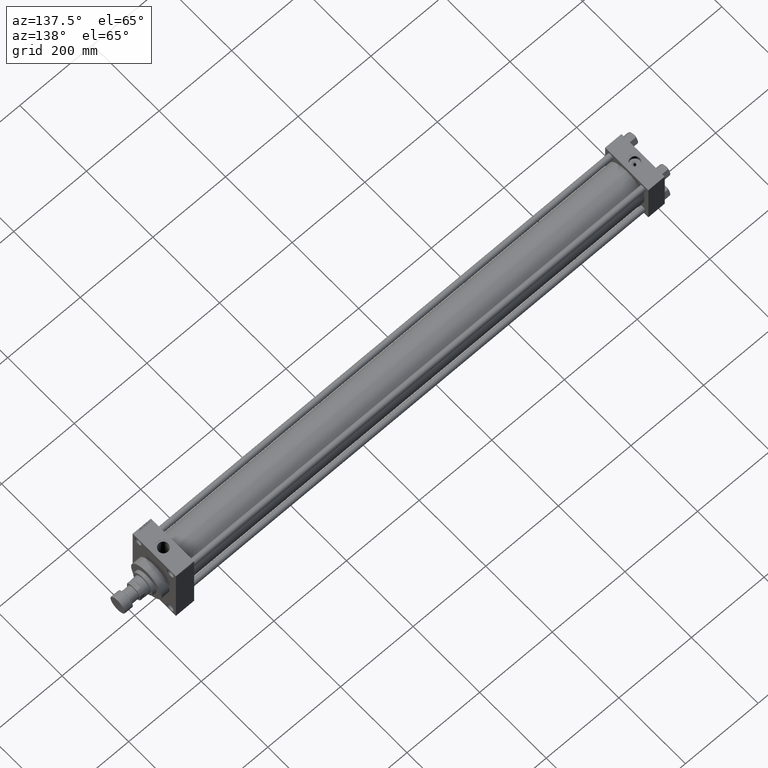
[diagram: clean part render]
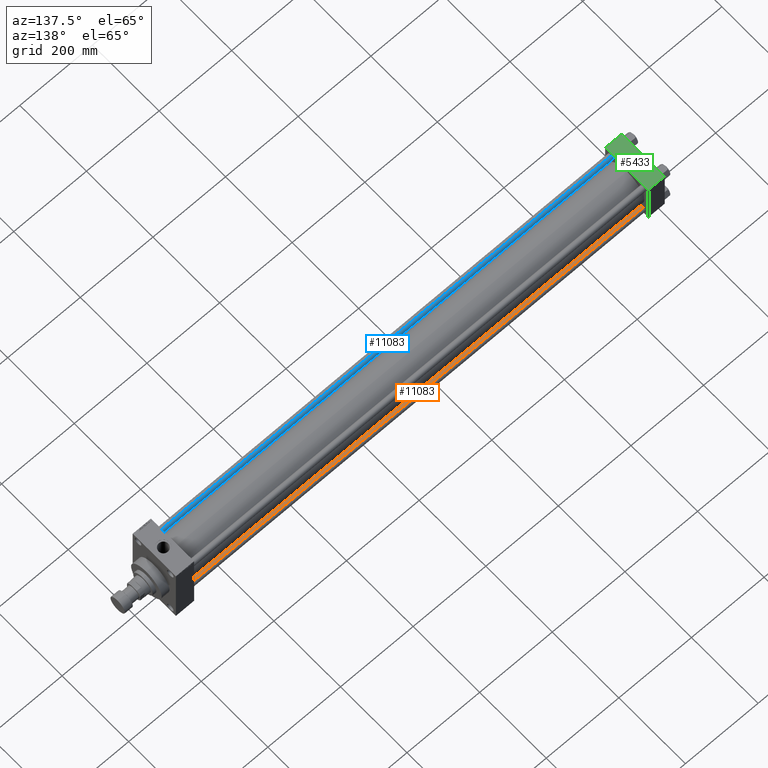
[diagram: same view with three faces highlighted in distinct colors, each labeled with its STEP entity id]
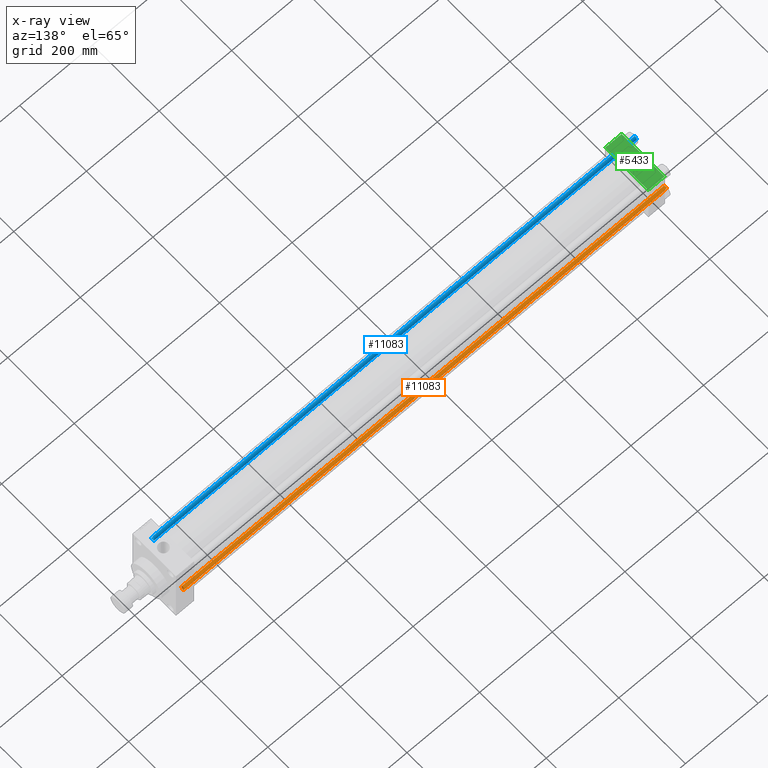
[diagram: x-ray of the same camera — body ghosted, the three highlighted faces saturated]
A machine part, auxiliary view with three faces highlighted in distinct colors.
The next image is the same camera in x-ray (body ghosted, the three faces saturated) — at least one of them is partly hidden behind the body in this view.
Their STEP definitions:

[orange] entity #11083 — the highlighted cylindrical surface (edge-blend (fillet) strip) has radius 8 mm, axis along (1, -0, 0).
#731 = DIRECTION ( 'NONE',  ( 1.000000000000000000, 0.000000000000000000, 0.000000000000000000 ) ) ;
#2493 = CIRCLE ( 'NONE', #4816, 8.000000000000000000 ) ;
#3463 = CARTESIAN_POINT ( 'NONE',  ( -8.000000000000000000, 0.000000000000000000, 0.5000000000001669775 ) ) ;
#4816 = AXIS2_PLACEMENT_3D ( 'NONE', #30146, #45478, #731 ) ;
#5119 = EDGE_CURVE ( 'NONE', #33205, #43701, #15087, .T. ) ;
#5442 = ORIENTED_EDGE ( 'NONE', *, *, #40802, .T. ) ;
#6545 = DIRECTION ( 'NONE',  ( 0.000000000000000000, 0.000000000000000000, -1.000000000000000000 ) ) ;
#7727 = ORIENTED_EDGE ( 'NONE', *, *, #41928, .T. ) ;
#7897 = FACE_OUTER_BOUND ( 'NONE', #9280, .T. ) ;
#9280 = EDGE_LOOP ( 'NONE', ( #22130, #7727, #35911, #5442 ) ) ;
#11083 = ADVANCED_FACE ( 'NONE', ( #7897 ), #19327, .T. ) ;
#13929 = VECTOR ( 'NONE', #22164, 1000.000000000000000 ) ;
#14603 = CARTESIAN_POINT ( 'NONE',  ( 8.000000000000000000, 9.797174393178825657E-16, 1329.000000000000000 ) ) ;
#15087 = LINE ( 'NONE', #14603, #13929 ) ;
#16269 = CARTESIAN_POINT ( 'NONE',  ( 8.000000000000000000, 9.797174393178825657E-16, 1328.500000000000227 ) ) ;
#17809 = CARTESIAN_POINT ( 'NONE',  ( -8.000000000000000000, 0.000000000000000000, 1328.500000000000227 ) ) ;
#17936 = VERTEX_POINT ( 'NONE', #17809 ) ;
#18581 = VECTOR ( 'NONE', #20257, 1000.000000000000000 ) ;
#19327 = CYLINDRICAL_SURFACE ( 'NONE', #33539, 8.000000000000000000 ) ;
#20257 = DIRECTION ( 'NONE',  ( -0.000000000000000000, -0.000000000000000000, -1.000000000000000000 ) ) ;
#22130 = ORIENTED_EDGE ( 'NONE', *, *, #5119, .F. ) ;
#22164 = DIRECTION ( 'NONE',  ( -0.000000000000000000, -0.000000000000000000, -1.000000000000000000 ) ) ;
#27108 = DIRECTION ( 'NONE',  ( -0.000000000000000000, -0.000000000000000000, -1.000000000000000000 ) ) ;
#30146 = CARTESIAN_POINT ( 'NONE',  ( 0.000000000000000000, 0.000000000000000000, 0.5000000000001669775 ) ) ;
#32185 = CARTESIAN_POINT ( 'NONE',  ( -8.000000000000000000, 0.000000000000000000, 1329.000000000000000 ) ) ;
#32605 = EDGE_CURVE ( 'NONE', #17936, #43757, #35825, .T. ) ;
#32840 = CIRCLE ( 'NONE', #47601, 8.000000000000000000 ) ;
#33205 = VERTEX_POINT ( 'NONE', #16269 ) ;
#33539 = AXIS2_PLACEMENT_3D ( 'NONE', #41948, #27108, #33932 ) ;
#33932 = DIRECTION ( 'NONE',  ( -1.000000000000000000, 0.000000000000000000, 0.000000000000000000 ) ) ;
#35825 = LINE ( 'NONE', #32185, #18581 ) ;
#35911 = ORIENTED_EDGE ( 'NONE', *, *, #32605, .T. ) ;
#36064 = CARTESIAN_POINT ( 'NONE',  ( 8.000000000000000000, 9.797174393178825657E-16, 0.5000000000001669775 ) ) ;
#39634 = DIRECTION ( 'NONE',  ( 1.000000000000000000, 0.000000000000000000, 0.000000000000000000 ) ) ;
#40802 = EDGE_CURVE ( 'NONE', #43757, #43701, #2493, .T. ) ;
#41928 = EDGE_CURVE ( 'NONE', #33205, #17936, #32840, .T. ) ;
#41948 = CARTESIAN_POINT ( 'NONE',  ( 0.000000000000000000, 0.000000000000000000, 1329.000000000000000 ) ) ;
#43701 = VERTEX_POINT ( 'NONE', #36064 ) ;
#43757 = VERTEX_POINT ( 'NONE', #3463 ) ;
#44013 = CARTESIAN_POINT ( 'NONE',  ( 0.000000000000000000, 0.000000000000000000, 1328.500000000000227 ) ) ;
#45478 = DIRECTION ( 'NONE',  ( -0.000000000000000000, -0.000000000000000000, 1.000000000000000000 ) ) ;
#47601 = AXIS2_PLACEMENT_3D ( 'NONE', #44013, #6545, #39634 ) ;

[blue] entity #11083 — the highlighted cylindrical surface (edge-blend (fillet) strip) has radius 8 mm, axis along (1, 0, 0).
#731 = DIRECTION ( 'NONE',  ( 1.000000000000000000, 0.000000000000000000, 0.000000000000000000 ) ) ;
#2493 = CIRCLE ( 'NONE', #4816, 8.000000000000000000 ) ;
#3463 = CARTESIAN_POINT ( 'NONE',  ( -8.000000000000000000, 0.000000000000000000, 0.5000000000001669775 ) ) ;
#4816 = AXIS2_PLACEMENT_3D ( 'NONE', #30146, #45478, #731 ) ;
#5119 = EDGE_CURVE ( 'NONE', #33205, #43701, #15087, .T. ) ;
#5442 = ORIENTED_EDGE ( 'NONE', *, *, #40802, .T. ) ;
#6545 = DIRECTION ( 'NONE',  ( 0.000000000000000000, 0.000000000000000000, -1.000000000000000000 ) ) ;
#7727 = ORIENTED_EDGE ( 'NONE', *, *, #41928, .T. ) ;
#7897 = FACE_OUTER_BOUND ( 'NONE', #9280, .T. ) ;
#9280 = EDGE_LOOP ( 'NONE', ( #22130, #7727, #35911, #5442 ) ) ;
#11083 = ADVANCED_FACE ( 'NONE', ( #7897 ), #19327, .T. ) ;
#13929 = VECTOR ( 'NONE', #22164, 1000.000000000000000 ) ;
#14603 = CARTESIAN_POINT ( 'NONE',  ( 8.000000000000000000, 9.797174393178825657E-16, 1329.000000000000000 ) ) ;
#15087 = LINE ( 'NONE', #14603, #13929 ) ;
#16269 = CARTESIAN_POINT ( 'NONE',  ( 8.000000000000000000, 9.797174393178825657E-16, 1328.500000000000227 ) ) ;
#17809 = CARTESIAN_POINT ( 'NONE',  ( -8.000000000000000000, 0.000000000000000000, 1328.500000000000227 ) ) ;
#17936 = VERTEX_POINT ( 'NONE', #17809 ) ;
#18581 = VECTOR ( 'NONE', #20257, 1000.000000000000000 ) ;
#19327 = CYLINDRICAL_SURFACE ( 'NONE', #33539, 8.000000000000000000 ) ;
#20257 = DIRECTION ( 'NONE',  ( -0.000000000000000000, -0.000000000000000000, -1.000000000000000000 ) ) ;
#22130 = ORIENTED_EDGE ( 'NONE', *, *, #5119, .F. ) ;
#22164 = DIRECTION ( 'NONE',  ( -0.000000000000000000, -0.000000000000000000, -1.000000000000000000 ) ) ;
#27108 = DIRECTION ( 'NONE',  ( -0.000000000000000000, -0.000000000000000000, -1.000000000000000000 ) ) ;
#30146 = CARTESIAN_POINT ( 'NONE',  ( 0.000000000000000000, 0.000000000000000000, 0.5000000000001669775 ) ) ;
#32185 = CARTESIAN_POINT ( 'NONE',  ( -8.000000000000000000, 0.000000000000000000, 1329.000000000000000 ) ) ;
#32605 = EDGE_CURVE ( 'NONE', #17936, #43757, #35825, .T. ) ;
#32840 = CIRCLE ( 'NONE', #47601, 8.000000000000000000 ) ;
#33205 = VERTEX_POINT ( 'NONE', #16269 ) ;
#33539 = AXIS2_PLACEMENT_3D ( 'NONE', #41948, #27108, #33932 ) ;
#33932 = DIRECTION ( 'NONE',  ( -1.000000000000000000, 0.000000000000000000, 0.000000000000000000 ) ) ;
#35825 = LINE ( 'NONE', #32185, #18581 ) ;
#35911 = ORIENTED_EDGE ( 'NONE', *, *, #32605, .T. ) ;
#36064 = CARTESIAN_POINT ( 'NONE',  ( 8.000000000000000000, 9.797174393178825657E-16, 0.5000000000001669775 ) ) ;
#39634 = DIRECTION ( 'NONE',  ( 1.000000000000000000, 0.000000000000000000, 0.000000000000000000 ) ) ;
#40802 = EDGE_CURVE ( 'NONE', #43757, #43701, #2493, .T. ) ;
#41928 = EDGE_CURVE ( 'NONE', #33205, #17936, #32840, .T. ) ;
#41948 = CARTESIAN_POINT ( 'NONE',  ( 0.000000000000000000, 0.000000000000000000, 1329.000000000000000 ) ) ;
#43701 = VERTEX_POINT ( 'NONE', #36064 ) ;
#43757 = VERTEX_POINT ( 'NONE', #3463 ) ;
#44013 = CARTESIAN_POINT ( 'NONE',  ( 0.000000000000000000, 0.000000000000000000, 1328.500000000000227 ) ) ;
#45478 = DIRECTION ( 'NONE',  ( -0.000000000000000000, -0.000000000000000000, 1.000000000000000000 ) ) ;
#47601 = AXIS2_PLACEMENT_3D ( 'NONE', #44013, #6545, #39634 ) ;

[green] entity #5433 — the highlighted planar face has unit normal (0, 0, -1).
#3864 = VECTOR ( 'NONE', #11850, 1000.000000000000000 ) ;
#3986 = ORIENTED_EDGE ( 'NONE', *, *, #20615, .T. ) ;
#5249 = EDGE_CURVE ( 'NONE', #41487, #41536, #7980, .T. ) ;
#5401 = EDGE_CURVE ( 'NONE', #41536, #27943, #21022, .T. ) ;
#5433 = ADVANCED_FACE ( 'NONE', ( #21504, #21742 ), #5942, .F. ) ;
#5671 = CIRCLE ( 'NONE', #32888, 17.50000000000000000 ) ;
#5942 = PLANE ( 'NONE',  #24818 ) ;
#7062 = ORIENTED_EDGE ( 'NONE', *, *, #5401, .T. ) ;
#7980 = LINE ( 'NONE', #22585, #3864 ) ;
#8075 = CIRCLE ( 'NONE', #30613, 17.50000000000000000 ) ;
#9450 = CARTESIAN_POINT ( 'NONE',  ( 40.00000000000000000, -8.673617379884035472E-15, 65.00000000000000000 ) ) ;
#10599 = CARTESIAN_POINT ( 'NONE',  ( 0.000000000000000000, 64.49999999999997158, 65.00000000000001421 ) ) ;
#11850 = DIRECTION ( 'NONE',  ( 0.000000000000000000, -1.000000000000000000, -1.067522139062650425E-16 ) ) ;
#11951 = CARTESIAN_POINT ( 'NONE',  ( 22.50000000000000000, -8.673617379884035472E-15, 65.00000000000000000 ) ) ;
#14358 = ORIENTED_EDGE ( 'NONE', *, *, #17332, .F. ) ;
#15247 = EDGE_CURVE ( 'NONE', #43864, #35949, #5671, .T. ) ;
#17332 = EDGE_CURVE ( 'NONE', #35949, #43864, #8075, .T. ) ;
#17848 = DIRECTION ( 'NONE',  ( 1.000000000000000000, 0.000000000000000000, 0.000000000000000000 ) ) ;
#18637 = CARTESIAN_POINT ( 'NONE',  ( 45.00000000000000000, 64.49999999999997158, 65.00000000000001421 ) ) ;
#19364 = VECTOR ( 'NONE', #17848, 1000.000000000000000 ) ;
#19519 = ORIENTED_EDGE ( 'NONE', *, *, #5249, .T. ) ;
#20615 = EDGE_CURVE ( 'NONE', #26564, #41487, #43051, .T. ) ;
#21022 = LINE ( 'NONE', #25166, #19364 ) ;
#21504 = FACE_BOUND ( 'NONE', #40944, .T. ) ;
#21742 = FACE_OUTER_BOUND ( 'NONE', #28489, .T. ) ;
#21798 = CARTESIAN_POINT ( 'NONE',  ( 0.000000000000000000, -64.49999999999997158, 65.00000000000000000 ) ) ;
#21819 = CARTESIAN_POINT ( 'NONE',  ( 45.00000000000000000, 65.00000000000000000, 65.00000000000001421 ) ) ;
#22011 = DIRECTION ( 'NONE',  ( 1.000000000000000000, 0.000000000000000000, 0.000000000000000000 ) ) ;
#22067 = ORIENTED_EDGE ( 'NONE', *, *, #15247, .F. ) ;
#22585 = CARTESIAN_POINT ( 'NONE',  ( 0.000000000000000000, 65.00000000000000000, 65.00000000000001421 ) ) ;
#23589 = EDGE_CURVE ( 'NONE', #26564, #27943, #40318, .T. ) ;
#24069 = CARTESIAN_POINT ( 'NONE',  ( 0.000000000000000000, 64.49999999999997158, 65.00000000000001421 ) ) ;
#24818 = AXIS2_PLACEMENT_3D ( 'NONE', #36586, #35623, #42920 ) ;
#25166 = CARTESIAN_POINT ( 'NONE',  ( 45.00000000000000000, -64.49999999999997158, 65.00000000000000000 ) ) ;
#26564 = VERTEX_POINT ( 'NONE', #18637 ) ;
#26987 = CARTESIAN_POINT ( 'NONE',  ( 45.00000000000000000, -64.49999999999997158, 65.00000000000000000 ) ) ;
#27047 = ORIENTED_EDGE ( 'NONE', *, *, #23589, .F. ) ;
#27943 = VERTEX_POINT ( 'NONE', #26987 ) ;
#28157 = DIRECTION ( 'NONE',  ( 0.000000000000000000, 0.000000000000000000, 1.000000000000000000 ) ) ;
#28489 = EDGE_LOOP ( 'NONE', ( #19519, #7062, #27047, #3986 ) ) ;
#30613 = AXIS2_PLACEMENT_3D ( 'NONE', #31812, #28157, #43001 ) ;
#31484 = VECTOR ( 'NONE', #44697, 1000.000000000000000 ) ;
#31812 = CARTESIAN_POINT ( 'NONE',  ( 22.50000000000000000, -8.673617379884035472E-15, 65.00000000000000000 ) ) ;
#32888 = AXIS2_PLACEMENT_3D ( 'NONE', #11951, #38008, #22011 ) ;
#34628 = VECTOR ( 'NONE', #35985, 1000.000000000000000 ) ;
#35623 = DIRECTION ( 'NONE',  ( 0.000000000000000000, 1.067522139062650548E-16, -1.000000000000000000 ) ) ;
#35949 = VERTEX_POINT ( 'NONE', #9450 ) ;
#35985 = DIRECTION ( 'NONE',  ( -1.000000000000000000, 0.000000000000000000, 0.000000000000000000 ) ) ;
#36586 = CARTESIAN_POINT ( 'NONE',  ( 45.00000000000000000, 65.00000000000000000, 65.00000000000001421 ) ) ;
#38008 = DIRECTION ( 'NONE',  ( 0.000000000000000000, 0.000000000000000000, 1.000000000000000000 ) ) ;
#40318 = LINE ( 'NONE', #21819, #31484 ) ;
#40944 = EDGE_LOOP ( 'NONE', ( #14358, #22067 ) ) ;
#41487 = VERTEX_POINT ( 'NONE', #10599 ) ;
#41536 = VERTEX_POINT ( 'NONE', #21798 ) ;
#42920 = DIRECTION ( 'NONE',  ( 0.000000000000000000, 1.000000000000000000, 1.067522139062650548E-16 ) ) ;
#43001 = DIRECTION ( 'NONE',  ( 1.000000000000000000, 0.000000000000000000, 0.000000000000000000 ) ) ;
#43051 = LINE ( 'NONE', #24069, #34628 ) ;
#43864 = VERTEX_POINT ( 'NONE', #44565 ) ;
#44565 = CARTESIAN_POINT ( 'NONE',  ( 4.999999999999997335, -6.530485481376167224E-15, 65.00000000000000000 ) ) ;
#44697 = DIRECTION ( 'NONE',  ( 0.000000000000000000, -1.000000000000000000, -1.067522139062650425E-16 ) ) ;